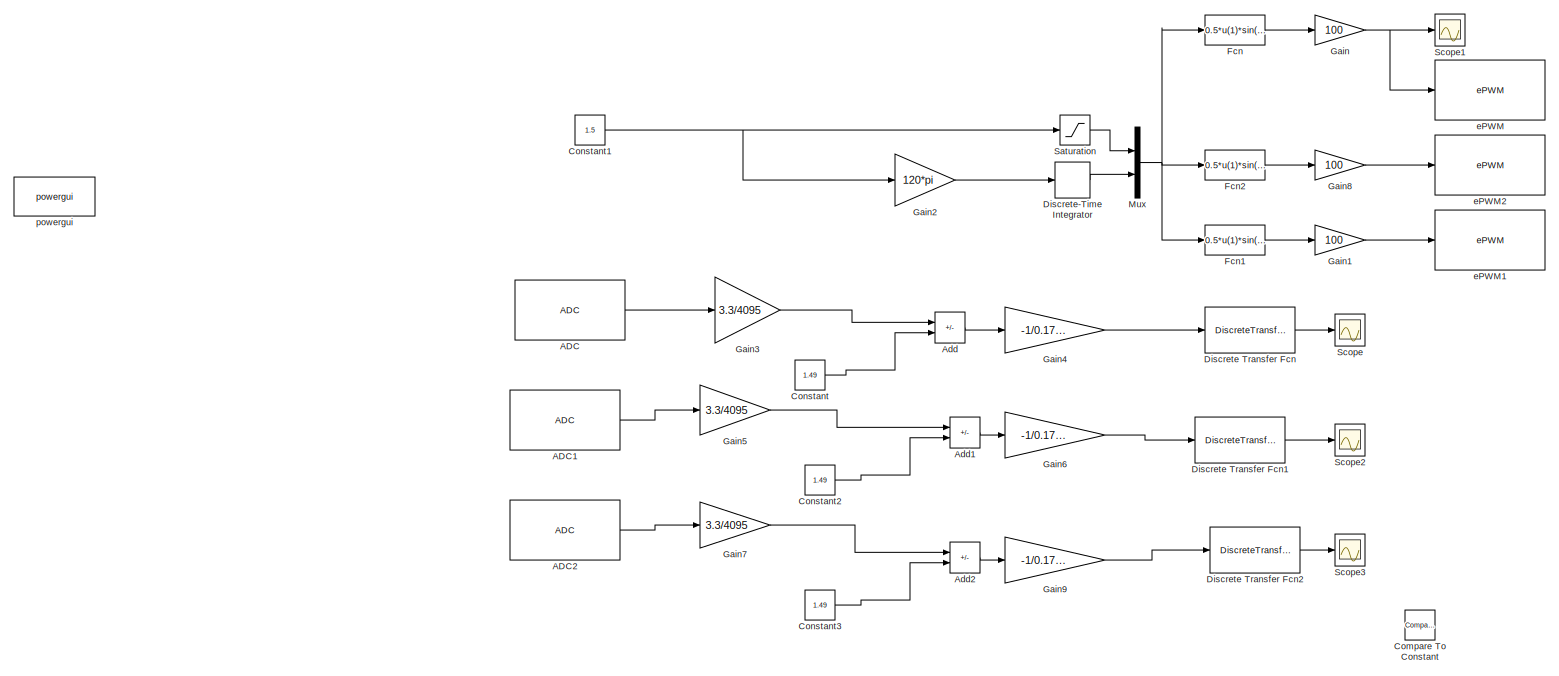
[diagram: root canvas - part 1/1, most of the canvas]
MODEL slx_7540a6a442da
KIND model
CONFIG AbsTol = auto
CONFIG EnableMultiTasking = on
CONFIG FixedStep = 1e-4
CONFIG MaxStep = 5e-5
CONFIG MinStep = auto
CONFIG RelTol = 1e-5
CONFIG SampleTimeConstraint = Unconstrained
CONFIG SolverName = FixedStepDiscrete
CONFIG StartTime = 0.0
CONFIG StopTime = Inf
BLOCK [Reference] ADC  REF=c2802xlib/ADC
  LibrarySourceBlock = c2837xDlib/ADC
  SourceBlock = c2802xlib/ADC
  SourceType = ADC Type 3-5
  UserDataPersistent = on
BLOCK [Reference] ADC1  REF=c2802xlib/ADC
  LibrarySourceBlock = c2837xDlib/ADC
  SourceBlock = c2802xlib/ADC
  SourceType = ADC Type 3-5
  UserDataPersistent = on
BLOCK [Reference] ADC2  REF=c2802xlib/ADC
  LibrarySourceBlock = c2837xDlib/ADC
  SourceBlock = c2802xlib/ADC
  SourceType = ADC Type 3-5
  UserDataPersistent = on
BLOCK [Sum] Add
  IconShape = rectangular
  Inputs = +-
BLOCK [Sum] Add1
  IconShape = rectangular
  Inputs = +-
BLOCK [Sum] Add2
  IconShape = rectangular
  Inputs = +-
BLOCK [Reference] Compare To Constant  REF=simulink/Logic and Bit
Operations/Compare
To Constant
  Commented = on
  SourceBlock = simulink/Logic and Bit\nOperations/Compare\nTo Constant
  SourceType = Compare To Constant
BLOCK [Constant] Constant
  Value = 1.49
BLOCK [Constant] Constant1
  Value = 1.5
BLOCK [Constant] Constant2
  Value = 1.49
BLOCK [Constant] Constant3
  Value = 1.49
BLOCK [DiscreteTransferFcn] Discrete Transfer Fcn
  Denominator = [1 -0.9048]
  InputPortMap = u0
  Numerator = [0.09516]
BLOCK [DiscreteTransferFcn] Discrete Transfer Fcn1
  Denominator = [1 -0.9048]
  InputPortMap = u0
  Numerator = [0.09516]
BLOCK [DiscreteTransferFcn] Discrete Transfer Fcn2
  Denominator = [1 -0.9048]
  InputPortMap = u0
  Numerator = [0.09516]
BLOCK [DiscreteIntegrator] Discrete-Time Integrator
  ICPrevOutput = DiscIntNeverNeededParam
  ICPrevScaledInput = DiscIntNeverNeededParam
  InitialConditionSetting = Auto
  SampleTime = -1
BLOCK [Fcn] Fcn
  Expr = 0.5*u(1)*sin(u(2))+0.5
BLOCK [Fcn] Fcn1
  Expr = 0.5*u(1)*sin(u(2)+(2*pi/3))+0.5
BLOCK [Fcn] Fcn2
  Expr = 0.5*u(1)*sin(u(2)-(2*pi/3))+0.5
BLOCK [Gain] Gain
  Gain = 100
BLOCK [Gain] Gain1
  Gain = 100
BLOCK [Gain] Gain2
  Gain = 120*pi
BLOCK [Gain] Gain3
  Gain = 3.3/4095
BLOCK [Gain] Gain4
  Gain = -1/0.177985
BLOCK [Gain] Gain5
  Gain = 3.3/4095
BLOCK [Gain] Gain6
  Gain = -1/0.177985
BLOCK [Gain] Gain7
  Gain = 3.3/4095
BLOCK [Gain] Gain8
  Gain = 100
BLOCK [Gain] Gain9
  Gain = -1/0.177985
BLOCK [Mux] Mux
  DisplayOption = bar
  Inputs = 2
BLOCK [Saturate] Saturation
  LowerLimit = 0
  UpperLimit = 0.9
BLOCK [Scope] Scope
  Floating = off
  NumInputPorts = 1
  ScopeSpecificationString = Simulink.scopes.TimeScopeBlockCfg('CurrentConfiguration', extmgr.ConfigurationSet(extmgr.Configuration('Core','General UI',true),extmgr.Configuration('Core','Source UI',true),extmgr.Configuration('Sources','WiredSimulink',true,'DataLoggingVariableName','ScopeData1'),extmgr.Configuration('Visuals','Time Domain',true,'SerializedDisplays',{struct('MinYLimReal','-0.12575','MaxYLimReal','0.0798','YLabe...<+1540ch>
BLOCK [Scope] Scope1
  Floating = off
  NumInputPorts = 1
  ScopeSpecificationString = Simulink.scopes.TimeScopeBlockCfg('CurrentConfiguration', extmgr.ConfigurationSet(extmgr.Configuration('Core','General UI',true),extmgr.Configuration('Core','Source UI',true),extmgr.Configuration('Sources','WiredSimulink',true,'DataLoggingVariableName','ScopeData2'),extmgr.Configuration('Visuals','Time Domain',true,'SerializedDisplays',{struct('MinYLimReal','-6.25','MaxYLimReal','106.25','YLabelRe...<+1542ch>
BLOCK [Scope] Scope2
  Floating = off
  NumInputPorts = 1
  ScopeSpecificationString = Simulink.scopes.TimeScopeBlockCfg('CurrentConfiguration', extmgr.ConfigurationSet(extmgr.Configuration('Core','General UI',true),extmgr.Configuration('Core','Source UI',true),extmgr.Configuration('Sources','WiredSimulink',true,'DataLoggingVariableName','ScopeData2'),extmgr.Configuration('Visuals','Time Domain',true,'SerializedDisplays',{struct('MinYLimReal','1.62581','MaxYLimReal','1.64717','YLabe...<+1468ch>
BLOCK [Scope] Scope3
  Floating = off
  NumInputPorts = 1
  ScopeSpecificationString = Simulink.scopes.TimeScopeBlockCfg('CurrentConfiguration', extmgr.ConfigurationSet(extmgr.Configuration('Core','General UI',true),extmgr.Configuration('Core','Source UI',true),extmgr.Configuration('Sources','WiredSimulink',true,'DataLoggingVariableName','ScopeData3'),extmgr.Configuration('Visuals','Time Domain',true,'SerializedDisplays',{struct('MinYLimReal','1.62208','MaxYLimReal','1.64676','YLabe...<+1468ch>
BLOCK [Reference] ePWM  REF=c2802xlib/ePWM
  SourceBlock = c2802xlib/ePWM
  SourceType = ePWM Type 1-4
  UserDataPersistent = on
BLOCK [Reference] ePWM1  REF=c2802xlib/ePWM
  SourceBlock = c2802xlib/ePWM
  SourceType = ePWM Type 1-4
  UserDataPersistent = on
BLOCK [Reference] ePWM2  REF=c2802xlib/ePWM
  SourceBlock = c2802xlib/ePWM
  SourceType = ePWM Type 1-4
  UserDataPersistent = on
BLOCK [Reference] powergui  REF=spspowerguiLib/powergui
  LibrarySourceBlock = sps_lib/powergui
  Priority = 1
  SourceBlock = spspowerguiLib/powergui
  SourceType = PSB option menu block
LINE ADC1:1 -> Gain5:1
LINE ADC2:1 -> Gain7:1
LINE ADC:1 -> Gain3:1
LINE Add1:1 -> Gain6:1
LINE Add2:1 -> Gain9:1
LINE Add:1 -> Gain4:1
NET Constant1:1 -> Gain2:1, Saturation:1
LINE Constant2:1 -> Add1:2
LINE Constant3:1 -> Add2:2
LINE Constant:1 -> Add:2
LINE Discrete Transfer Fcn1:1 -> Scope2:1
LINE Discrete Transfer Fcn2:1 -> Scope3:1
LINE Discrete Transfer Fcn:1 -> Scope:1
LINE Discrete-Time Integrator:1 -> Mux:2
LINE Fcn1:1 -> Gain1:1
LINE Fcn2:1 -> Gain8:1
LINE Fcn:1 -> Gain:1
LINE Gain1:1 -> ePWM1:1
LINE Gain2:1 -> Discrete-Time Integrator:1
LINE Gain3:1 -> Add:1
LINE Gain4:1 -> Discrete Transfer Fcn:1
LINE Gain5:1 -> Add1:1
LINE Gain6:1 -> Discrete Transfer Fcn1:1
LINE Gain7:1 -> Add2:1
LINE Gain8:1 -> ePWM2:1
LINE Gain9:1 -> Discrete Transfer Fcn2:1
NET Gain:1 -> Scope1:1, ePWM:1
NET Mux:1 -> Fcn1:1, Fcn2:1, Fcn:1
LINE Saturation:1 -> Mux:1
note: NET lines group one-source signal fan-out (src -> all destinations, sorted); 1:1 wires keep LINE
